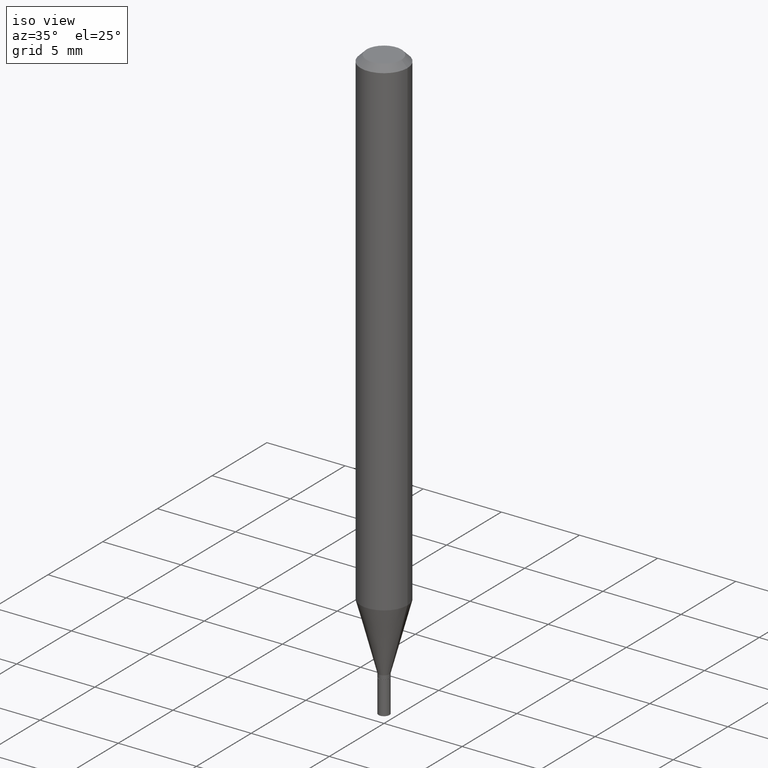
[diagram: clean part render]
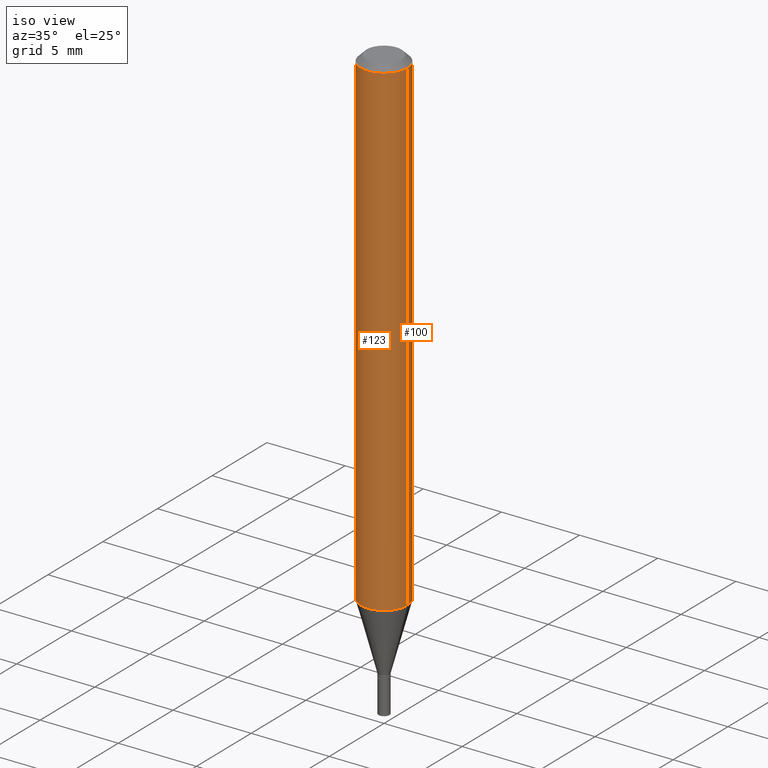
[diagram: same view with one multi-face feature highlighted, each face labeled with its STEP entity id]
A machine part, iso view. The highlighted faces form ONE feature: a constant-radius fillet chain: 2 tangent blend faces with common blend radius 1.4999 mm. The faces share edges in the B-rep.
Their STEP definitions:
[1] entity #123 (Cylinder):
#5 = CARTESIAN_POINT ( 'NONE',  ( 0.000000000000000000, 0.000000000000000000, 0.000000000000000000 ) ) ;
#10 = VERTEX_POINT ( 'NONE', #284 ) ;
#11 = ORIENTED_EDGE ( 'NONE', *, *, #148, .F. ) ;
#18 = EDGE_CURVE ( 'NONE', #451, #10, #421, .T. ) ;
#38 = FACE_OUTER_BOUND ( 'NONE', #245, .T. ) ;
#52 = AXIS2_PLACEMENT_3D ( 'NONE', #314, #171, #174 ) ;
#72 = DIRECTION ( 'NONE',  ( 1.000000000000000000, -6.982962677686266711E-15, 0.000000000000000000 ) ) ;
#80 = VECTOR ( 'NONE', #425, 39.37007874015748143 ) ;
#101 = CARTESIAN_POINT ( 'NONE',  ( -0.05904999999999999832, -3.903313803087555062E-15, -1.238124700957509594 ) ) ;
#104 = CYLINDRICAL_SURFACE ( 'NONE', #402, 0.05904999999999999832 ) ;
#116 = CARTESIAN_POINT ( 'NONE',  ( 0.05904999999999999832, -4.735233234671267897E-15, -1.238124700957509594 ) ) ;
#123 = ADVANCED_FACE ( 'NONE', ( #38 ), #104, .T. ) ;
#124 = VERTEX_POINT ( 'NONE', #179 ) ;
#148 = EDGE_CURVE ( 'NONE', #124, #10, #196, .T. ) ;
#169 = ORIENTED_EDGE ( 'NONE', *, *, #308, .F. ) ;
#171 = DIRECTION ( 'NONE',  ( -2.445468806185136597E-29, 3.491481338843145583E-15, 1.000000000000000000 ) ) ;
#174 = DIRECTION ( 'NONE',  ( 1.000000000000000000, -6.982962677686273021E-15, 0.000000000000000000 ) ) ;
#179 = CARTESIAN_POINT ( 'NONE',  ( -0.05904999999999999832, -1.768055268851931719E-15, -0.01499999999999999944 ) ) ;
#196 = CIRCLE ( 'NONE', #395, 0.05904999999999999832 ) ;
#206 = CIRCLE ( 'NONE', #52, 0.05904999999999999832 ) ;
#224 = DIRECTION ( 'NONE',  ( -2.445468806185136597E-29, 3.491481338843145583E-15, 1.000000000000000000 ) ) ;
#239 = CARTESIAN_POINT ( 'NONE',  ( -0.05904999999999999832, 4.195754854663391478E-16, -2.904631170795521892E-30 ) ) ;
#245 = EDGE_LOOP ( 'NONE', ( #169, #416, #306, #11 ) ) ;
#261 = VECTOR ( 'NONE', #280, 39.37007874015748143 ) ;
#280 = DIRECTION ( 'NONE',  ( -2.445468806185136877E-29, 3.491481338843145188E-15, 1.000000000000000000 ) ) ;
#284 = CARTESIAN_POINT ( 'NONE',  ( 0.05904999999999999832, -4.647161662000212105E-16, -0.01499999999999999944 ) ) ;
#289 = EDGE_CURVE ( 'NONE', #388, #451, #206, .T. ) ;
#294 = DIRECTION ( 'NONE',  ( -2.445468806185136597E-29, 3.491481338843145583E-15, 1.000000000000000000 ) ) ;
#306 = ORIENTED_EDGE ( 'NONE', *, *, #18, .T. ) ;
#308 = EDGE_CURVE ( 'NONE', #388, #124, #360, .T. ) ;
#314 = CARTESIAN_POINT ( 'NONE',  ( 3.027795334358889940E-29, -4.322889288553894555E-15, -1.238124700957509594 ) ) ;
#324 = CARTESIAN_POINT ( 'NONE',  ( 0.05904999999999999832, -4.123439461173740327E-16, 2.879382386107500220E-30 ) ) ;
#329 = DIRECTION ( 'NONE',  ( 1.000000000000000000, -6.982962677686266711E-15, 4.876176775795936353E-29 ) ) ;
#360 = LINE ( 'NONE', #239, #261 ) ;
#388 = VERTEX_POINT ( 'NONE', #101 ) ;
#395 = AXIS2_PLACEMENT_3D ( 'NONE', #464, #224, #72 ) ;
#402 = AXIS2_PLACEMENT_3D ( 'NONE', #5, #294, #329 ) ;
#416 = ORIENTED_EDGE ( 'NONE', *, *, #289, .T. ) ;
#421 = LINE ( 'NONE', #324, #80 ) ;
#425 = DIRECTION ( 'NONE',  ( -2.445468806185136877E-29, 3.491481338843145188E-15, 1.000000000000000000 ) ) ;
#451 = VERTEX_POINT ( 'NONE', #116 ) ;
#464 = CARTESIAN_POINT ( 'NONE',  ( 3.668203209277705088E-31, -5.237222008264718399E-17, -0.01499999999999999944 ) ) ;
[2] entity #100 (Cylinder):
#10 = VERTEX_POINT ( 'NONE', #284 ) ;
#13 = EDGE_CURVE ( 'NONE', #451, #388, #288, .T. ) ;
#18 = EDGE_CURVE ( 'NONE', #451, #10, #421, .T. ) ;
#22 = DIRECTION ( 'NONE',  ( 1.000000000000000000, -6.982962677686266711E-15, 4.876176775795936353E-29 ) ) ;
#29 = AXIS2_PLACEMENT_3D ( 'NONE', #175, #91, #279 ) ;
#43 = ORIENTED_EDGE ( 'NONE', *, *, #223, .F. ) ;
#48 = ORIENTED_EDGE ( 'NONE', *, *, #18, .F. ) ;
#57 = CARTESIAN_POINT ( 'NONE',  ( 0.000000000000000000, 0.000000000000000000, 0.000000000000000000 ) ) ;
#58 = AXIS2_PLACEMENT_3D ( 'NONE', #57, #207, #22 ) ;
#78 = DIRECTION ( 'NONE',  ( 1.000000000000000000, -6.982962677686266711E-15, 0.000000000000000000 ) ) ;
#80 = VECTOR ( 'NONE', #425, 39.37007874015748143 ) ;
#91 = DIRECTION ( 'NONE',  ( -2.445468806185136597E-29, 3.491481338843145583E-15, 1.000000000000000000 ) ) ;
#100 = ADVANCED_FACE ( 'NONE', ( #199 ), #351, .T. ) ;
#101 = CARTESIAN_POINT ( 'NONE',  ( -0.05904999999999999832, -3.903313803087555062E-15, -1.238124700957509594 ) ) ;
#114 = DIRECTION ( 'NONE',  ( -2.445468806185136597E-29, 3.491481338843145583E-15, 1.000000000000000000 ) ) ;
#116 = CARTESIAN_POINT ( 'NONE',  ( 0.05904999999999999832, -4.735233234671267897E-15, -1.238124700957509594 ) ) ;
#124 = VERTEX_POINT ( 'NONE', #179 ) ;
#158 = ORIENTED_EDGE ( 'NONE', *, *, #13, .T. ) ;
#175 = CARTESIAN_POINT ( 'NONE',  ( 3.027795334358889940E-29, -4.322889288553894555E-15, -1.238124700957509594 ) ) ;
#179 = CARTESIAN_POINT ( 'NONE',  ( -0.05904999999999999832, -1.768055268851931719E-15, -0.01499999999999999944 ) ) ;
#185 = EDGE_LOOP ( 'NONE', ( #158, #211, #43, #48 ) ) ;
#199 = FACE_OUTER_BOUND ( 'NONE', #185, .T. ) ;
#207 = DIRECTION ( 'NONE',  ( -2.445468806185136597E-29, 3.491481338843145583E-15, 1.000000000000000000 ) ) ;
#211 = ORIENTED_EDGE ( 'NONE', *, *, #308, .T. ) ;
#223 = EDGE_CURVE ( 'NONE', #10, #124, #386, .T. ) ;
#239 = CARTESIAN_POINT ( 'NONE',  ( -0.05904999999999999832, 4.195754854663391478E-16, -2.904631170795521892E-30 ) ) ;
#261 = VECTOR ( 'NONE', #280, 39.37007874015748143 ) ;
#279 = DIRECTION ( 'NONE',  ( 1.000000000000000000, -6.982962677686273021E-15, 0.000000000000000000 ) ) ;
#280 = DIRECTION ( 'NONE',  ( -2.445468806185136877E-29, 3.491481338843145188E-15, 1.000000000000000000 ) ) ;
#284 = CARTESIAN_POINT ( 'NONE',  ( 0.05904999999999999832, -4.647161662000212105E-16, -0.01499999999999999944 ) ) ;
#288 = CIRCLE ( 'NONE', #29, 0.05904999999999999832 ) ;
#308 = EDGE_CURVE ( 'NONE', #388, #124, #360, .T. ) ;
#324 = CARTESIAN_POINT ( 'NONE',  ( 0.05904999999999999832, -4.123439461173740327E-16, 2.879382386107500220E-30 ) ) ;
#351 = CYLINDRICAL_SURFACE ( 'NONE', #58, 0.05904999999999999832 ) ;
#354 = AXIS2_PLACEMENT_3D ( 'NONE', #440, #114, #78 ) ;
#360 = LINE ( 'NONE', #239, #261 ) ;
#386 = CIRCLE ( 'NONE', #354, 0.05904999999999999832 ) ;
#388 = VERTEX_POINT ( 'NONE', #101 ) ;
#421 = LINE ( 'NONE', #324, #80 ) ;
#425 = DIRECTION ( 'NONE',  ( -2.445468806185136877E-29, 3.491481338843145188E-15, 1.000000000000000000 ) ) ;
#440 = CARTESIAN_POINT ( 'NONE',  ( 3.668203209277705088E-31, -5.237222008264718399E-17, -0.01499999999999999944 ) ) ;
#451 = VERTEX_POINT ( 'NONE', #116 ) ;